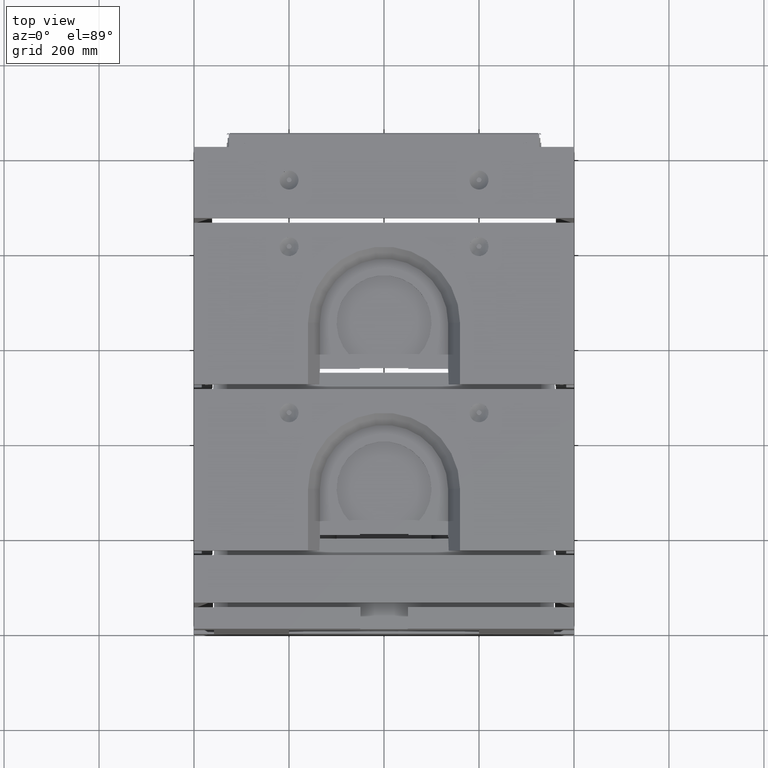
[diagram: clean part render]
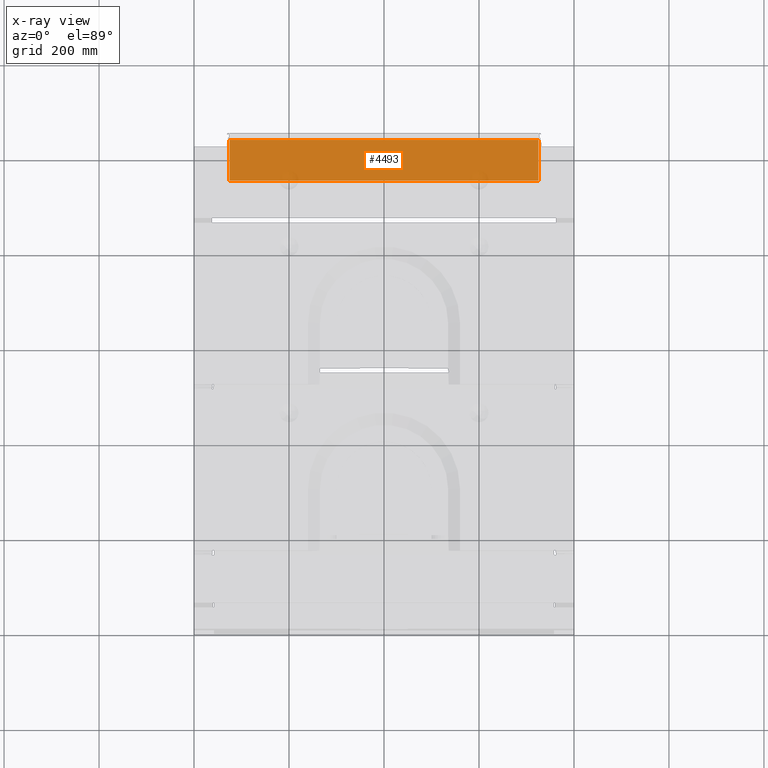
[diagram: x-ray — body ghosted, one internal face saturated and labeled with its STEP entity id]
A machine part, top view, then the same camera in x-ray: the body is ghosted and one INTERNAL B-rep face — a face not visible from any outside direction — is saturated and labeled: STEP entity #4493.
In plain terms, the highlighted planar face has unit normal (0, -0, 1).
Its self-contained STEP definition (entity closure, byte-faithful):
#1341 = DIRECTION ( 'NONE',  ( 1.734723475976801856E-17, -4.601748275363936636E-16, 1.000000000000000000 ) ) ;
#2839 = VECTOR ( 'NONE', #26357, 1000.000000000000000 ) ;
#2871 = DIRECTION ( 'NONE',  ( 1.000000000000000000, -5.516542887059285490E-33, -1.734723475976819112E-17 ) ) ;
#4065 = VERTEX_POINT ( 'NONE', #4392 ) ;
#4392 = CARTESIAN_POINT ( 'NONE',  ( 325.0000000000001137, 955.9999999999995453, -324.9999999999999432 ) ) ;
#4493 = ADVANCED_FACE ( 'NONE', ( #16636 ), #26019, .T. ) ;
#5465 = ORIENTED_EDGE ( 'NONE', *, *, #10611, .T. ) ;
#5570 = ORIENTED_EDGE ( 'NONE', *, *, #25319, .F. ) ;
#5929 = DIRECTION ( 'NONE',  ( -8.952403464661249345E-32, -1.000000000000000000, -4.601748275363936636E-16 ) ) ;
#6093 = CARTESIAN_POINT ( 'NONE',  ( -325.0000000000000000, 953.9999999999995453, -324.9999999999999432 ) ) ;
#7307 = EDGE_CURVE ( 'NONE', #10861, #15434, #9286, .T. ) ;
#7389 = VECTOR ( 'NONE', #2871, 1000.000000000000000 ) ;
#8516 = AXIS2_PLACEMENT_3D ( 'NONE', #23747, #1341, #15897 ) ;
#8922 = CARTESIAN_POINT ( 'NONE',  ( -325.0000000000000000, 1041.999999999999545, -324.9999999999998863 ) ) ;
#9286 = LINE ( 'NONE', #8922, #7389 ) ;
#9735 = ORIENTED_EDGE ( 'NONE', *, *, #23869, .T. ) ;
#9774 = VERTEX_POINT ( 'NONE', #16532 ) ;
#10611 = EDGE_CURVE ( 'NONE', #9774, #4065, #20720, .T. ) ;
#10861 = VERTEX_POINT ( 'NONE', #22457 ) ;
#14923 = VECTOR ( 'NONE', #17613, 1000.000000000000000 ) ;
#15231 = LINE ( 'NONE', #6093, #2839 ) ;
#15434 = VERTEX_POINT ( 'NONE', #17041 ) ;
#15838 = ORIENTED_EDGE ( 'NONE', *, *, #7307, .F. ) ;
#15892 = EDGE_LOOP ( 'NONE', ( #5570, #15838, #9735, #5465 ) ) ;
#15897 = DIRECTION ( 'NONE',  ( 8.952403464661249345E-32, 1.000000000000000000, 4.601748275363936636E-16 ) ) ;
#16532 = CARTESIAN_POINT ( 'NONE',  ( -325.0000000000000000, 955.9999999999995453, -324.9999999999999432 ) ) ;
#16636 = FACE_OUTER_BOUND ( 'NONE', #15892, .T. ) ;
#17041 = CARTESIAN_POINT ( 'NONE',  ( 325.0000000000001137, 1041.999999999999545, -324.9999999999998863 ) ) ;
#17613 = DIRECTION ( 'NONE',  ( 1.000000000000000000, -5.516542887059285490E-33, -1.734723475976819112E-17 ) ) ;
#17941 = LINE ( 'NONE', #24280, #25925 ) ;
#19865 = CARTESIAN_POINT ( 'NONE',  ( -325.0000000000000000, 955.9999999999995453, -324.9999999999999432 ) ) ;
#20720 = LINE ( 'NONE', #19865, #14923 ) ;
#22457 = CARTESIAN_POINT ( 'NONE',  ( -325.0000000000000000, 1041.999999999999545, -324.9999999999998863 ) ) ;
#23747 = CARTESIAN_POINT ( 'NONE',  ( -325.0000000000000000, 953.9999999999995453, -324.9999999999999432 ) ) ;
#23869 = EDGE_CURVE ( 'NONE', #10861, #9774, #15231, .T. ) ;
#24280 = CARTESIAN_POINT ( 'NONE',  ( 325.0000000000001137, 953.9999999999995453, -324.9999999999999432 ) ) ;
#25319 = EDGE_CURVE ( 'NONE', #15434, #4065, #17941, .T. ) ;
#25925 = VECTOR ( 'NONE', #5929, 1000.000000000000000 ) ;
#26019 = PLANE ( 'NONE',  #8516 ) ;
#26357 = DIRECTION ( 'NONE',  ( -8.952403464661249345E-32, -1.000000000000000000, -4.601748275363936636E-16 ) ) ;